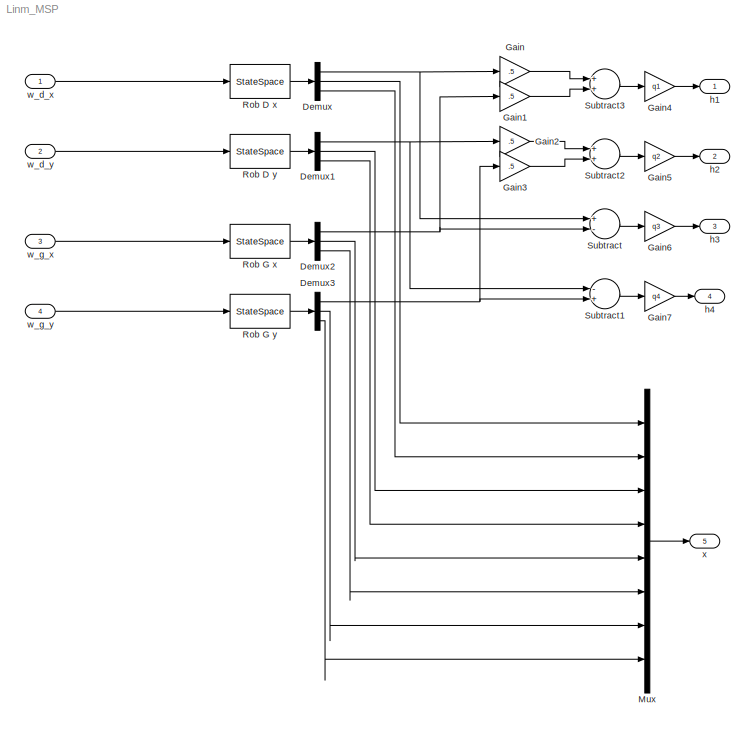
MODEL Linm_MSP
KIND model
BLOCK [Demux] Demux
  DisplayOption = bar
  Outputs = 3
  Ports = [1, 3]
  SID = 13
BLOCK [Demux] Demux1
  DisplayOption = bar
  Outputs = 3
  Ports = [1, 3]
  SID = 15
BLOCK [Demux] Demux2
  DisplayOption = bar
  Outputs = 3
  Ports = [1, 3]
  SID = 16
BLOCK [Demux] Demux3
  DisplayOption = bar
  Outputs = 3
  Ports = [1, 3]
  SID = 17
BLOCK [Gain] Gain
  Gain = .5
  OutDataType = fixdt(1, 16)
  OutDataTypeMode = Inherit via internal rule
  OutDataTypeStr = Inherit: Inherit via internal rule
  OutScaling = 2^0
  ParamDataTypeStr = Inherit: Inherit via internal rule
  ParameterDataType = fixdt(1, 16)
  ParameterDataTypeMode = Inherit via internal rule
  ParameterScaling = 2^0
  SID = 3
  SaturateOnIntegerOverflow = off
BLOCK [Gain] Gain1
  Gain = .5
  OutDataType = fixdt(1, 16)
  OutDataTypeMode = Inherit via internal rule
  OutDataTypeStr = Inherit: Inherit via internal rule
  OutScaling = 2^0
  ParamDataTypeStr = Inherit: Inherit via internal rule
  ParameterDataType = fixdt(1, 16)
  ParameterDataTypeMode = Inherit via internal rule
  ParameterScaling = 2^0
  SID = 10
  SaturateOnIntegerOverflow = off
BLOCK [Gain] Gain2
  Gain = .5
  OutDataType = fixdt(1, 16)
  OutDataTypeMode = Inherit via internal rule
  OutDataTypeStr = Inherit: Inherit via internal rule
  OutScaling = 2^0
  ParamDataTypeStr = Inherit: Inherit via internal rule
  ParameterDataType = fixdt(1, 16)
  ParameterDataTypeMode = Inherit via internal rule
  ParameterScaling = 2^0
  SID = 18
  SaturateOnIntegerOverflow = off
BLOCK [Gain] Gain3
  Gain = .5
  OutDataType = fixdt(1, 16)
  OutDataTypeMode = Inherit via internal rule
  OutDataTypeStr = Inherit: Inherit via internal rule
  OutScaling = 2^0
  ParamDataTypeStr = Inherit: Inherit via internal rule
  ParameterDataType = fixdt(1, 16)
  ParameterDataTypeMode = Inherit via internal rule
  ParameterScaling = 2^0
  SID = 19
  SaturateOnIntegerOverflow = off
BLOCK [Gain] Gain4
  Gain = q1
  OutDataType = fixdt(1, 16)
  OutDataTypeMode = Inherit via internal rule
  OutDataTypeStr = Inherit: Inherit via internal rule
  OutScaling = 2^0
  ParamDataTypeStr = Inherit: Inherit via internal rule
  ParameterDataType = fixdt(1, 16)
  ParameterDataTypeMode = Inherit via internal rule
  ParameterScaling = 2^0
  SID = 72
  SaturateOnIntegerOverflow = off
BLOCK [Gain] Gain5
  Gain = q2
  OutDataType = fixdt(1, 16)
  OutDataTypeMode = Inherit via internal rule
  OutDataTypeStr = Inherit: Inherit via internal rule
  OutScaling = 2^0
  ParamDataTypeStr = Inherit: Inherit via internal rule
  ParameterDataType = fixdt(1, 16)
  ParameterDataTypeMode = Inherit via internal rule
  ParameterScaling = 2^0
  SID = 73
  SaturateOnIntegerOverflow = off
BLOCK [Gain] Gain6
  Gain = q3
  OutDataType = fixdt(1, 16)
  OutDataTypeMode = Inherit via internal rule
  OutDataTypeStr = Inherit: Inherit via internal rule
  OutScaling = 2^0
  ParamDataTypeStr = Inherit: Inherit via internal rule
  ParameterDataType = fixdt(1, 16)
  ParameterDataTypeMode = Inherit via internal rule
  ParameterScaling = 2^0
  SID = 74
  SaturateOnIntegerOverflow = off
BLOCK [Gain] Gain7
  Gain = q4
  OutDataType = fixdt(1, 16)
  OutDataTypeMode = Inherit via internal rule
  OutDataTypeStr = Inherit: Inherit via internal rule
  OutScaling = 2^0
  ParamDataTypeStr = Inherit: Inherit via internal rule
  ParameterDataType = fixdt(1, 16)
  ParameterDataTypeMode = Inherit via internal rule
  ParameterScaling = 2^0
  SID = 75
  SaturateOnIntegerOverflow = off
BLOCK [Mux] Mux
  DisplayOption = bar
  Inputs = 8
  Ports = [8, 1]
  SID = 76
BLOCK [StateSpace] Rob D x 
  A = Adr
  B = Bdr
  C = Cdr
  D = Ddr
  SID = 8
BLOCK [StateSpace] Rob D y
  A = Adr
  B = Bdr
  C = Cdr
  D = Ddr
  SID = 11
BLOCK [StateSpace] Rob G x
  A = Adr
  B = Bdr
  C = Cdr
  D = Ddr
  SID = 9
BLOCK [StateSpace] Rob G y
  A = Adr
  B = Bdr
  C = Cdr
  D = Ddr
  SID = 12
BLOCK [Sum] Subtract
  InputSameDT = off
  Inputs = +-
  OutDataType = fixdt(1, 16)
  OutDataTypeMode = Inherit via internal rule
  OutDataTypeStr = Inherit: Inherit via internal rule
  OutScaling = 2^-10
  Ports = [2, 1]
  SID = 4
  SaturateOnIntegerOverflow = off
BLOCK [Sum] Subtract1
  InputSameDT = off
  Inputs = -+
  OutDataType = fixdt(1, 16)
  OutDataTypeMode = Inherit via internal rule
  OutDataTypeStr = Inherit: Inherit via internal rule
  OutScaling = 2^-10
  Ports = [2, 1]
  SID = 5
  SaturateOnIntegerOverflow = off
BLOCK [Sum] Subtract2
  InputSameDT = off
  OutDataType = fixdt(1, 16)
  OutDataTypeMode = Inherit via internal rule
  OutDataTypeStr = Inherit: Inherit via internal rule
  OutScaling = 2^-10
  Ports = [2, 1]
  SID = 6
  SaturateOnIntegerOverflow = off
BLOCK [Sum] Subtract3
  InputSameDT = off
  OutDataType = fixdt(1, 16)
  OutDataTypeMode = Inherit via internal rule
  OutDataTypeStr = Inherit: Inherit via internal rule
  OutScaling = 2^-10
  Ports = [2, 1]
  SID = 7
  SaturateOnIntegerOverflow = off
BLOCK [Outport] h1
  IconDisplay = Port number
  OutDataType = fixdt(1, 16)
  OutScaling = 2^0
  SID = 77
BLOCK [Outport] h2
  IconDisplay = Port number
  OutDataType = fixdt(1, 16)
  OutScaling = 2^0
  Port = 2
  SID = 78
BLOCK [Outport] h3
  IconDisplay = Port number
  OutDataType = fixdt(1, 16)
  OutScaling = 2^0
  Port = 3
  SID = 79
BLOCK [Outport] h4
  IconDisplay = Port number
  OutDataType = fixdt(1, 16)
  OutScaling = 2^0
  Port = 4
  SID = 80
BLOCK [Inport] w_d_x
  IconDisplay = Port number
  OutDataType = fixdt(1, 16)
  OutScaling = 2^0
  SID = 82
BLOCK [Inport] w_d_y
  IconDisplay = Port number
  OutDataType = fixdt(1, 16)
  OutScaling = 2^0
  Port = 2
  SID = 83
BLOCK [Inport] w_g_x
  IconDisplay = Port number
  OutDataType = fixdt(1, 16)
  OutScaling = 2^0
  Port = 3
  SID = 84
BLOCK [Inport] w_g_y
  IconDisplay = Port number
  OutDataType = fixdt(1, 16)
  OutScaling = 2^0
  Port = 4
  SID = 85
BLOCK [Outport] x
  IconDisplay = Port number
  OutDataType = fixdt(1, 16)
  OutScaling = 2^0
  Port = 5
  SID = 81
NET Demux1:1 -> Gain2:1, Subtract1:1
LINE Demux1:2 -> Mux:3
LINE Demux1:3 -> Mux:4
NET Demux2:1 -> Gain1:1, Subtract:2
LINE Demux2:2 -> Mux:5
LINE Demux2:3 -> Mux:6
NET Demux3:1 -> Gain3:1, Subtract1:2
LINE Demux3:2 -> Mux:7
LINE Demux3:3 -> Mux:8
NET Demux:1 -> Gain:1, Subtract:1
LINE Demux:2 -> Mux:1
LINE Demux:3 -> Mux:2
LINE Gain1:1 -> Subtract3:2
LINE Gain2:1 -> Subtract2:1
LINE Gain3:1 -> Subtract2:2
LINE Gain4:1 -> h1:1
LINE Gain5:1 -> h2:1
LINE Gain6:1 -> h3:1
LINE Gain7:1 -> h4:1
LINE Gain:1 -> Subtract3:1
LINE Mux:1 -> x:1
LINE Rob D x :1 -> Demux:1
LINE Rob D y:1 -> Demux1:1
LINE Rob G x:1 -> Demux2:1
LINE Rob G y:1 -> Demux3:1
LINE Subtract1:1 -> Gain7:1
LINE Subtract2:1 -> Gain5:1
LINE Subtract3:1 -> Gain4:1
LINE Subtract:1 -> Gain6:1
LINE w_d_x:1 -> Rob D x :1
LINE w_d_y:1 -> Rob D y:1
LINE w_g_x:1 -> Rob G x:1
LINE w_g_y:1 -> Rob G y:1
note: NET lines group one-source signal fan-out (src -> all destinations, sorted); 1:1 wires keep LINE
